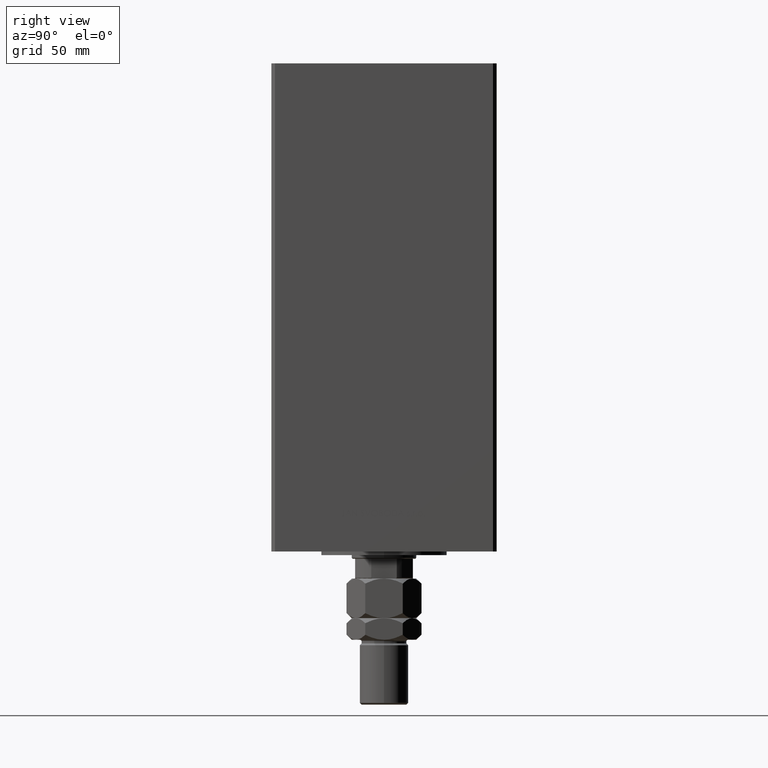
[diagram: clean part render]
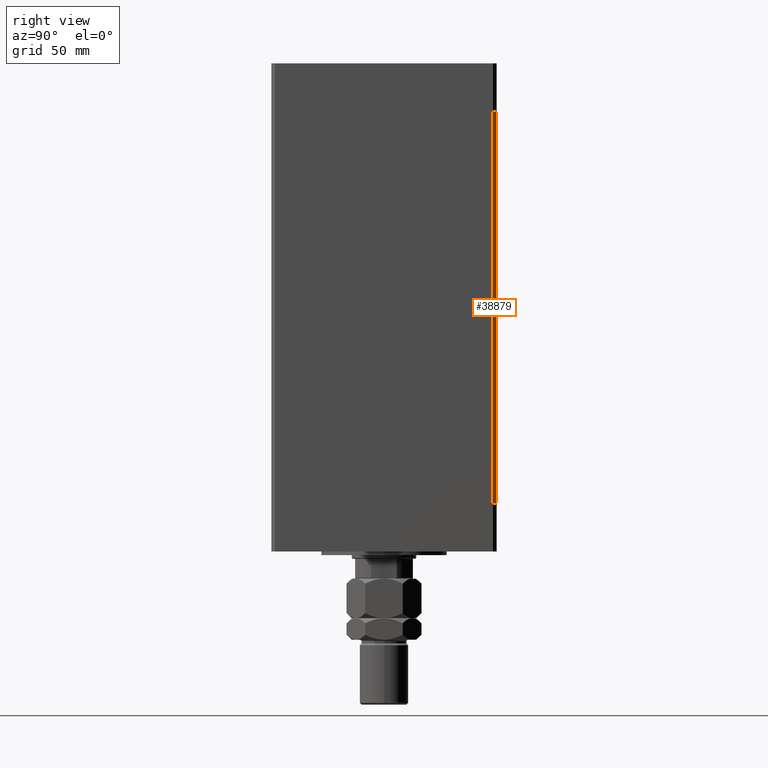
[diagram: same view with one face highlighted and labeled with its STEP entity id]
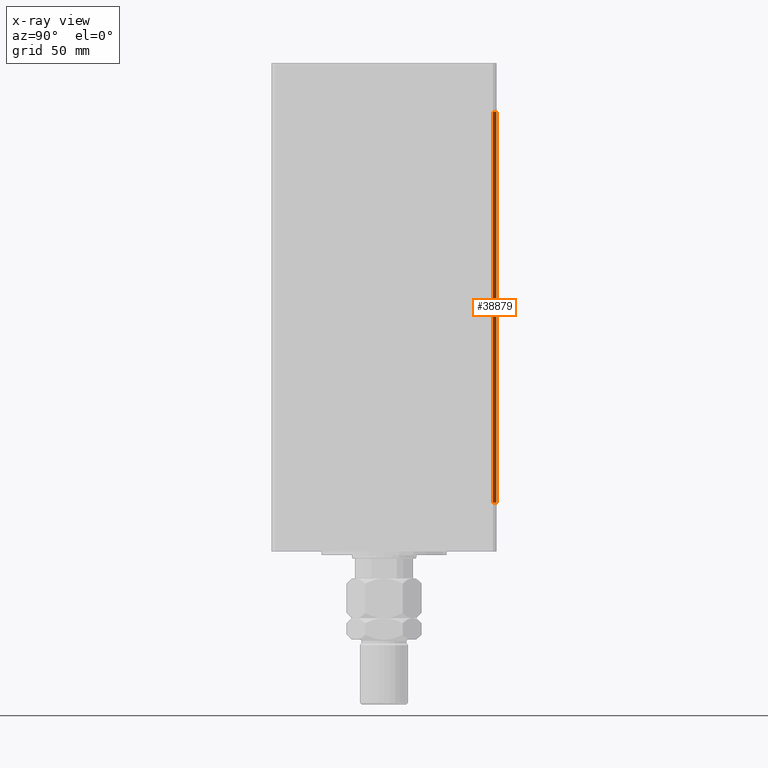
[diagram: x-ray of the same camera — body ghosted, the highlighted face saturated]
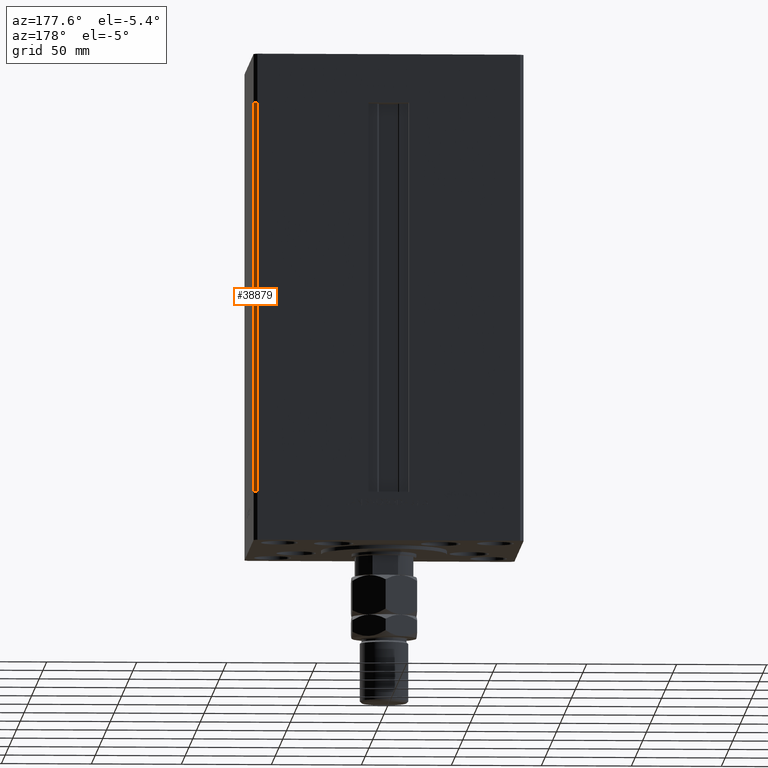
[diagram: same view with one face highlighted and labeled with its STEP entity id]
A machine part, right view. The second image highlights one B-rep face of the part: STEP entity #38879.
The next image is the same camera in x-ray: the body ghosted, the highlighted face saturated — about 0% of this face is hidden behind the body in this view.
A second angle (auxiliary view) of the same face is appended — the face is thin or edge-on in the first view.
In plain terms, the highlighted planar face has unit normal (0.7071, 0.7071, 0).
Its self-contained STEP definition (entity closure, byte-faithful):
#1129 = CARTESIAN_POINT ( 'NONE',  ( 73.00000000000001421, 62.50000000000000000, 217.0000000000000000 ) ) ;
#2441 = PLANE ( 'NONE',  #17701 ) ;
#4870 = VERTEX_POINT ( 'NONE', #45710 ) ;
#6033 = DIRECTION ( 'NONE',  ( 0.7071067811865475727, 0.7071067811865475727, -0.000000000000000000 ) ) ;
#8399 = VERTEX_POINT ( 'NONE', #1129 ) ;
#9162 = ORIENTED_EDGE ( 'NONE', *, *, #18385, .F. ) ;
#10330 = LINE ( 'NONE', #37944, #30761 ) ;
#10781 = DIRECTION ( 'NONE',  ( 0.7071067811865474617, -0.7071067811865474617, 0.000000000000000000 ) ) ;
#10943 = LINE ( 'NONE', #26544, #16715 ) ;
#11330 = DIRECTION ( 'NONE',  ( -0.000000000000000000, -0.000000000000000000, -1.000000000000000000 ) ) ;
#12895 = EDGE_CURVE ( 'NONE', #31654, #4870, #10943, .T. ) ;
#15888 = LINE ( 'NONE', #45818, #25977 ) ;
#16715 = VECTOR ( 'NONE', #29872, 1000.000000000000000 ) ;
#17701 = AXIS2_PLACEMENT_3D ( 'NONE', #18300, #6033, #25974 ) ;
#18178 = CARTESIAN_POINT ( 'NONE',  ( 73.00000000000001421, 62.50000000000000000, 0.000000000000000000 ) ) ;
#18300 = CARTESIAN_POINT ( 'NONE',  ( 73.00000000000001421, 62.50000000000000000, 217.0000000000000000 ) ) ;
#18385 = EDGE_CURVE ( 'NONE', #8399, #46480, #10330, .T. ) ;
#20876 = EDGE_CURVE ( 'NONE', #46480, #4870, #15888, .T. ) ;
#23498 = ORIENTED_EDGE ( 'NONE', *, *, #25053, .T. ) ;
#25053 = EDGE_CURVE ( 'NONE', #8399, #31654, #39503, .T. ) ;
#25974 = DIRECTION ( 'NONE',  ( -0.7071067811865474617, 0.7071067811865474617, 0.000000000000000000 ) ) ;
#25977 = VECTOR ( 'NONE', #10781, 1000.000000000000114 ) ;
#26544 = CARTESIAN_POINT ( 'NONE',  ( 75.00000000000001421, 60.50000000000000000, 217.0000000000000000 ) ) ;
#29872 = DIRECTION ( 'NONE',  ( -0.000000000000000000, -0.000000000000000000, -1.000000000000000000 ) ) ;
#29929 = ORIENTED_EDGE ( 'NONE', *, *, #12895, .T. ) ;
#30042 = FACE_OUTER_BOUND ( 'NONE', #41474, .T. ) ;
#30761 = VECTOR ( 'NONE', #11330, 1000.000000000000000 ) ;
#31654 = VERTEX_POINT ( 'NONE', #37019 ) ;
#35390 = CARTESIAN_POINT ( 'NONE',  ( 73.00000000000001421, 62.50000000000000000, 217.0000000000000000 ) ) ;
#37019 = CARTESIAN_POINT ( 'NONE',  ( 75.00000000000001421, 60.50000000000000000, 217.0000000000000000 ) ) ;
#37944 = CARTESIAN_POINT ( 'NONE',  ( 73.00000000000001421, 62.50000000000000000, 217.0000000000000000 ) ) ;
#38879 = ADVANCED_FACE ( 'NONE', ( #30042 ), #2441, .T. ) ;
#38984 = DIRECTION ( 'NONE',  ( 0.7071067811865474617, -0.7071067811865474617, 0.000000000000000000 ) ) ;
#39503 = LINE ( 'NONE', #35390, #46708 ) ;
#40981 = ORIENTED_EDGE ( 'NONE', *, *, #20876, .F. ) ;
#41474 = EDGE_LOOP ( 'NONE', ( #40981, #9162, #23498, #29929 ) ) ;
#45710 = CARTESIAN_POINT ( 'NONE',  ( 75.00000000000001421, 60.50000000000000000, 0.000000000000000000 ) ) ;
#45818 = CARTESIAN_POINT ( 'NONE',  ( 73.00000000000001421, 62.50000000000000000, 0.000000000000000000 ) ) ;
#46480 = VERTEX_POINT ( 'NONE', #18178 ) ;
#46708 = VECTOR ( 'NONE', #38984, 1000.000000000000114 ) ;